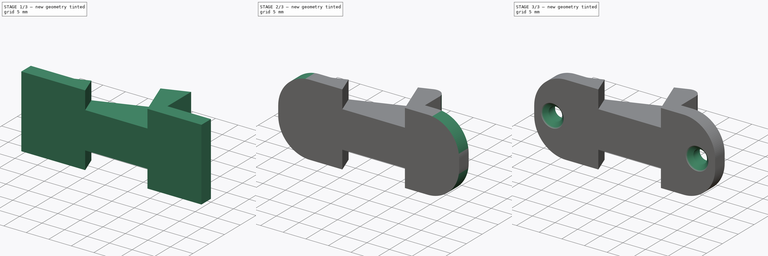
[diagram: build sequence overview — one tinted view per stage of 3, left to right]
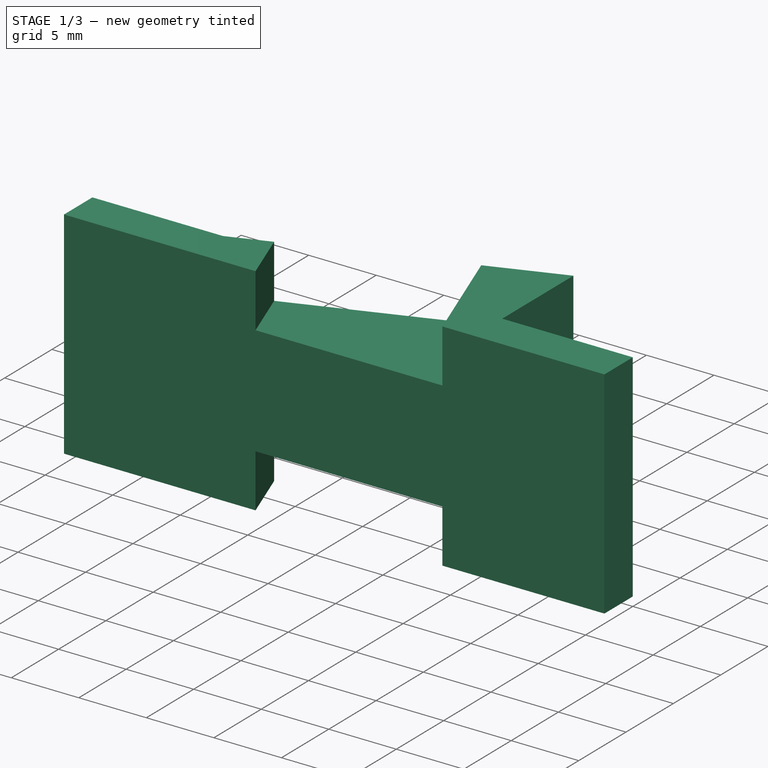
[diagram: stage 1 of 3 — iso view after this stage's code; geometry added in this stage tinted green]
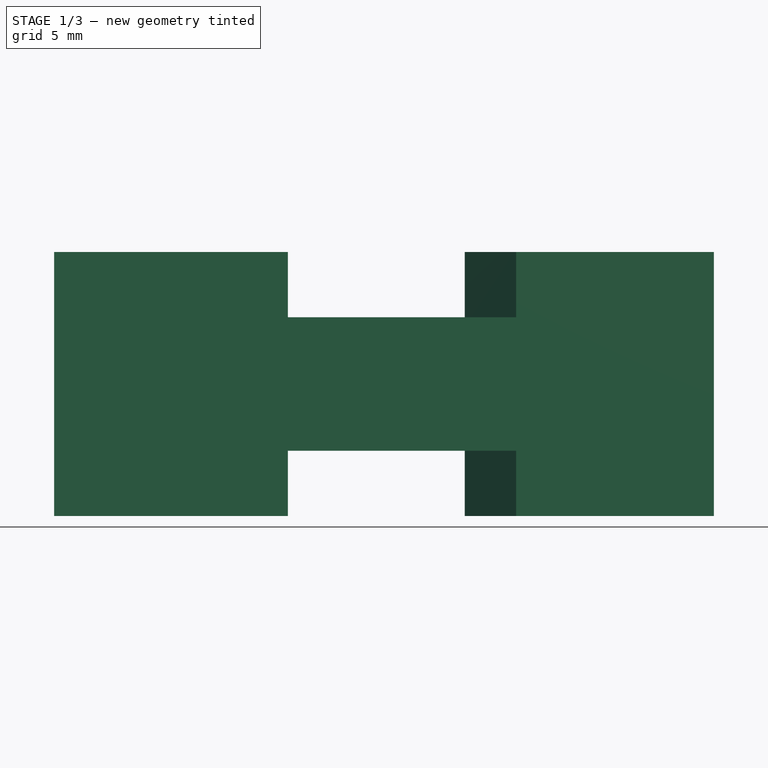
[diagram: stage 1 of 3 — front view after this stage's code; geometry added in this stage tinted green]
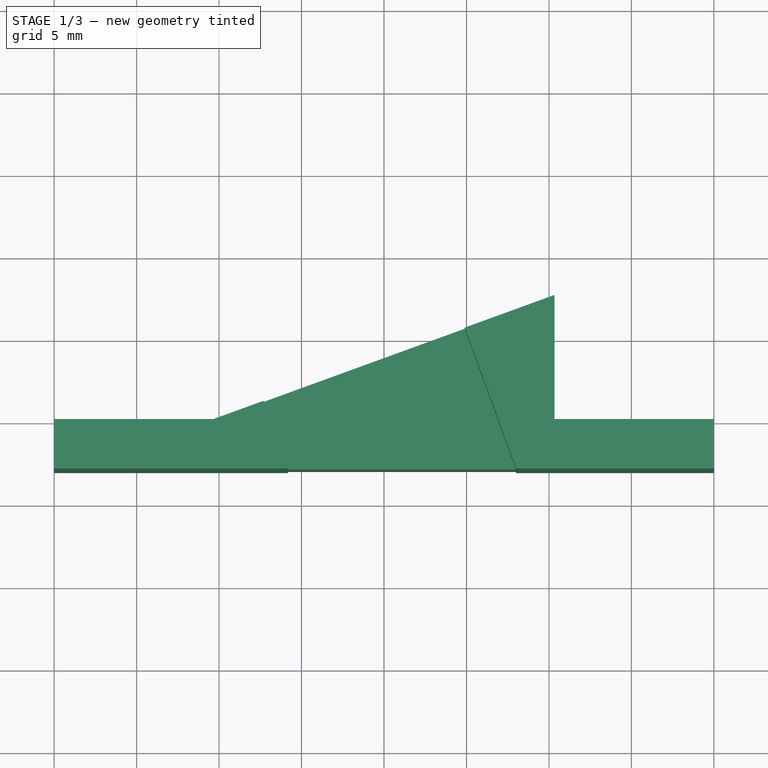
[diagram: stage 1 of 3 — top view after this stage's code; geometry added in this stage tinted green]
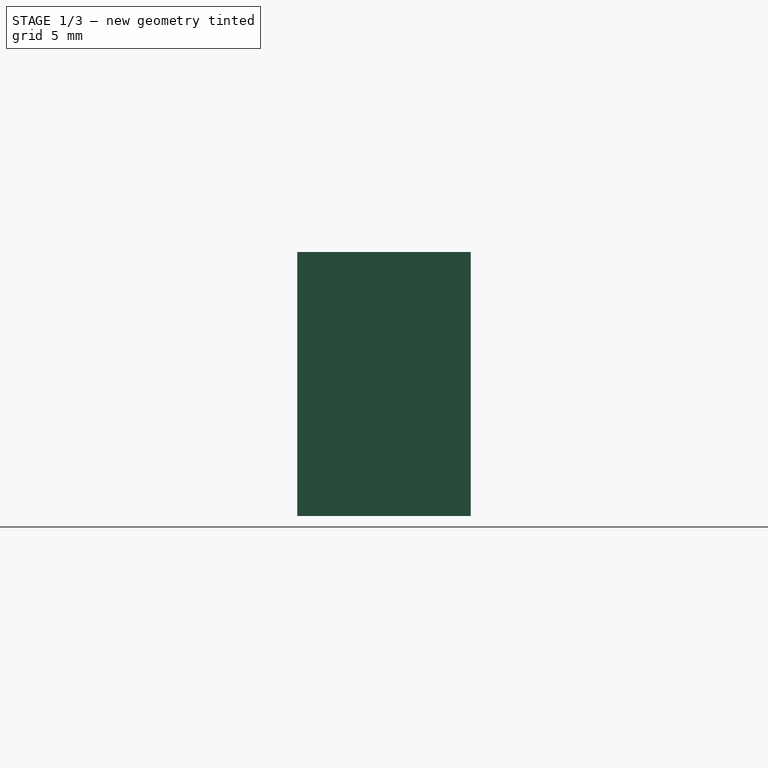
[diagram: stage 1 of 3 — right view after this stage's code; geometry added in this stage tinted green]
FCSTD DOCUMENT  (FreeCAD 1.0R38641 +468 (Git))
Label: ld2410_angledholder
License: All rights reserved
LicenseURL: https://en.wikipedia.org/wiki/All_rights_reserved
objects: Sketcher::SketchObject×4, PartDesign::Pocket×2, PartDesign::Fillet×2, PartDesign::Pad×1, PartDesign::Chamfer×1, PartDesign::Body×1
note: 27 computed .brp shape members not serialized (recipe doc carries the construction recipe); baked Part::Feature solids carry a one-line shape summary decoded from their .brp

FEATURE [Sketcher::SketchObject] Sketch006
  ArcFitTolerance = 1e-06
  AttachmentSupport = -> [XY_Plane003]
  FullyConstrained = true
  MakeInternals = false
  MapMode = 5
  sketch-geometry (7):
    g0: LineSegment StartX=-20 StartY=0 StartZ=0 EndX=-20 EndY=-3 EndZ=0
    g1: LineSegment StartX=-20 StartY=-3 StartZ=0 EndX=20 EndY=-3 EndZ=0
    g2: LineSegment StartX=20 StartY=-3 StartZ=0 EndX=20 EndY=0 EndZ=0
    g3: LineSegment StartX=10.3366 StartY=0 StartZ=0 EndX=10.3366 EndY=7.52444 EndZ=0
    g4: LineSegment StartX=10.3366 StartY=7.52444 StartZ=0 EndX=-10.3366 EndY=0 EndZ=0
    g5: LineSegment StartX=-20 StartY=0 StartZ=0 EndX=-10.3366 EndY=0 EndZ=0
    g6: LineSegment StartX=10.3366 StartY=0 StartZ=0 EndX=20 EndY=0 EndZ=0
  constraints (19):
    c: PointOnObject(g0,g-1)
    c: Vertical(g0)
    c: Coincident(g0,g1)
    c: Horizontal(g1)
    c: Coincident(g1,g2)
    c: Vertical(g2)
    c: Vertical(g3)
    c: Coincident(g3,g4)
    c: Coincident(g0,g5)
    c: Coincident(g5,g4)
    c: Horizontal(g5)
    c: Coincident(g3,g6)
    c: Coincident(g6,g2)
    c: Symmetric(g4,g3,g-1)
    c: Symmetric(g0,g2,g-1)
    c: DistanceX(g1,g1) = 40
    c: Distance(g4,g4) = 22
    c: Angle(g-1,g4) = 0.349066
    c: DistanceY(g2,g2) = 3
FEATURE [PartDesign::Pad] Pad005
  Direction = (0,0,1)
  Length = 16
  Length2 = 10
  Midplane = true
  Profile = -> Sketch006
  ReferenceAxis = -> Sketch006 [N_Axis]
  Refine = true
  Suppressed = false
  Type = 0
FEATURE [Sketcher::SketchObject] Sketch007
  ArcFitTolerance = 1e-06
  AttachmentSupport = -> [Pad005]
  ExternalGeometry = -> [Pad005]
  FullyConstrained = false
  MakeInternals = false
  MapMode = 5
  Placement = pos=(-1.20915,3.32213,0) rot=(-0.123724,0.701674,0.701674;3.38779rad)
  sketch-geometry (9):
    g0: LineSegment StartX=-6.5 StartY=-4.04995 StartZ=0 EndX=6.5 EndY=-4.04995 EndZ=0
    g1: LineSegment StartX=-6.5 StartY=-7.99995 StartZ=0 EndX=-6.5 EndY=-4.04995 EndZ=0
    g2: LineSegment StartX=6.5 StartY=-4.04995 StartZ=0 EndX=6.5 EndY=-7.99995 EndZ=0
    g3: LineSegment StartX=-6.5 StartY=-7.99995 StartZ=0 EndX=6.5 EndY=-7.99995 EndZ=0
    g4: LineSegment StartX=-6.5 StartY=4.05 StartZ=0 EndX=6.5 EndY=4.05 EndZ=0
    g5: LineSegment StartX=6.5 StartY=4.05 StartZ=0 EndX=6.5 EndY=8 EndZ=0
    g6: LineSegment StartX=6.5 StartY=8 StartZ=0 EndX=-6.5 EndY=8 EndZ=0
    g7: LineSegment StartX=-6.5 StartY=8 StartZ=0 EndX=-6.5 EndY=4.05 EndZ=0
    g8: GeomPoint [constr] X=0 Y=6.025 Z=0
  constraints (23):
    c: DistanceX(g0,g0) = 13
    c: Symmetric(g0,g0,g-2)
    c: Coincident(g1,g0)
    c: Vertical(g1)
    c: Coincident(g0,g2)
    c: Vertical(g2)
    c: Horizontal(g1,g2)
    c: DistanceY(g2,g2) = 3.95
    c: Coincident(g1,g3)
    c: Coincident(g3,g2)
    c: Coincident(g4,g5)
    c: Coincident(g5,g6)
    c: Coincident(g6,g7)
    c: Coincident(g7,g4)
    c: Horizontal(g4)
    c: Horizontal(g6)
    c: Vertical(g5)
    c: Vertical(g7)
    c: Symmetric(g6,g4,g8)
    c: PointOnObject(g8,g-2)
    c: PointOnObject(g5,g-3)
    c: Equal(g0,g4)
    c: Equal(g5,g2)
FEATURE [PartDesign::Pocket] Pocket001
  BaseFeature = -> Pad005
  Direction = (0.34202,-0.939693,1e-16)
  Length = 27
  Length2 = 5
  Profile = -> Sketch007
  ReferenceAxis = -> Sketch007 [N_Axis]
  Refine = true
  Suppressed = false
  Type = 1
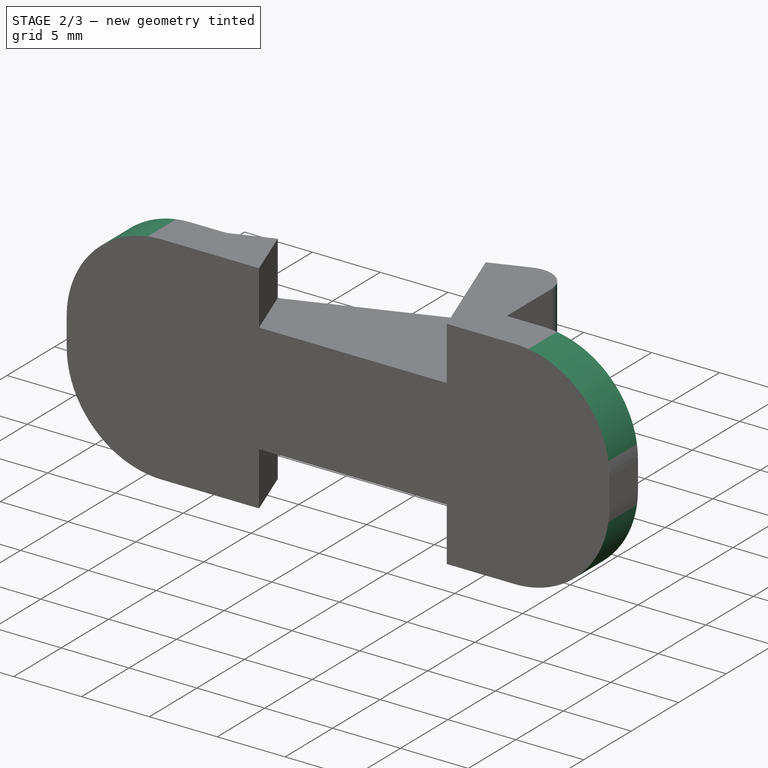
[diagram: stage 2 of 3 — iso view after this stage's code; geometry added in this stage tinted green]
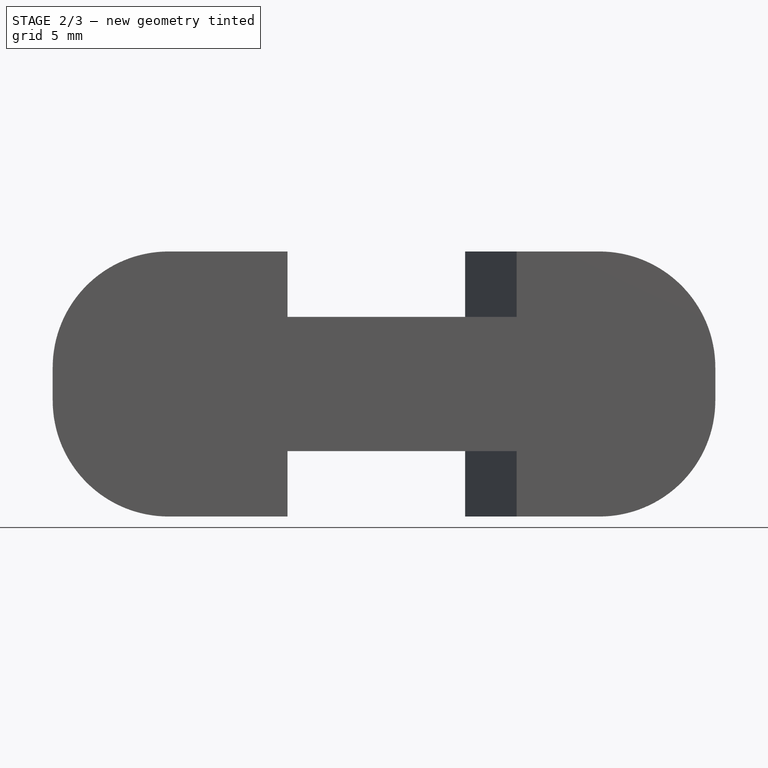
[diagram: stage 2 of 3 — front view after this stage's code; geometry added in this stage tinted green]
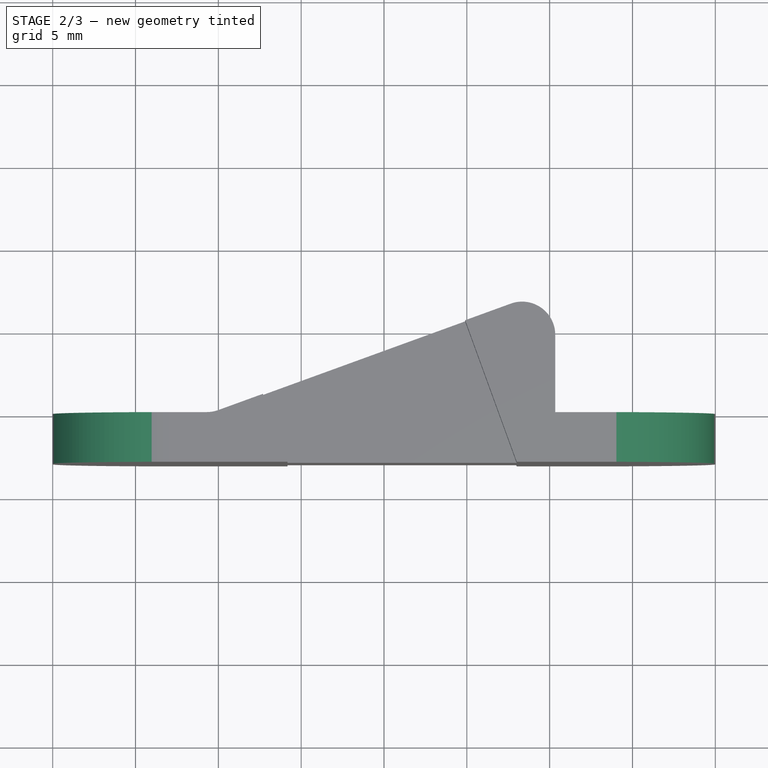
[diagram: stage 2 of 3 — top view after this stage's code; geometry added in this stage tinted green]
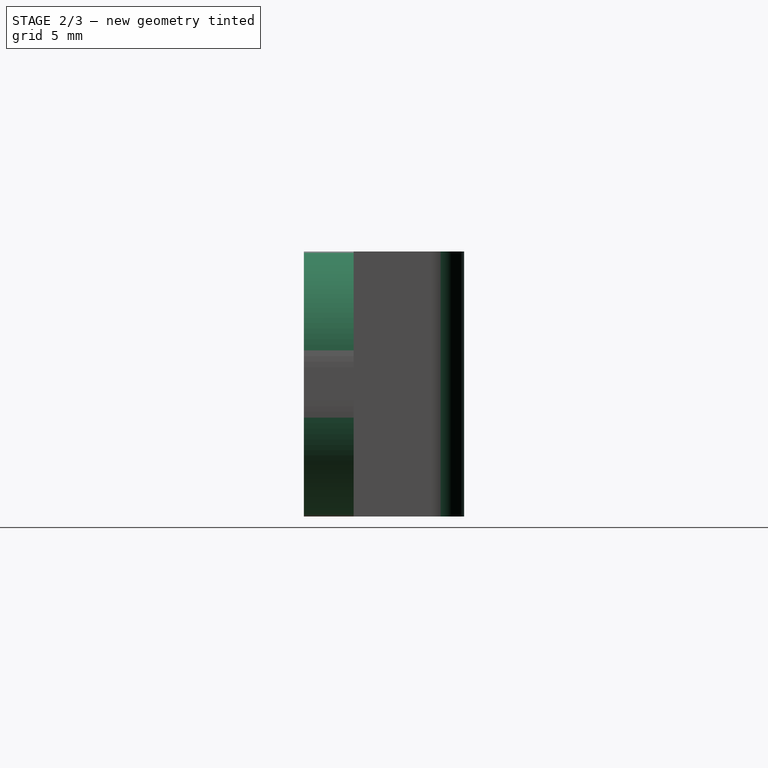
[diagram: stage 2 of 3 — right view after this stage's code; geometry added in this stage tinted green]
FEATURE [PartDesign::Fillet] Fillet001
  Base = -> Pocket001 [Edge2,Edge13]
  BaseFeature = -> Pocket001
  Radius = 2
  Refine = true
  SupportTransform = false
  Suppressed = false
  UseAllEdges = false
FEATURE [PartDesign::Fillet] Fillet002
  Base = -> Fillet001 [Edge50,Edge18,Edge10,Edge45]
  BaseFeature = -> Fillet001
  Radius = 7
  Refine = true
  SupportTransform = false
  Suppressed = false
  UseAllEdges = false
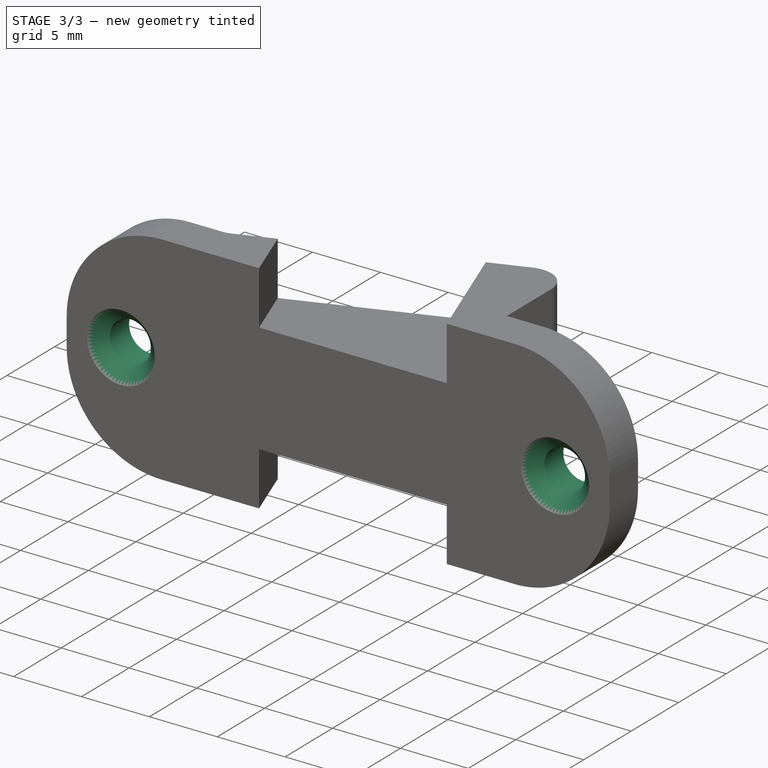
[diagram: stage 3 of 3 — iso view after this stage's code; geometry added in this stage tinted green]
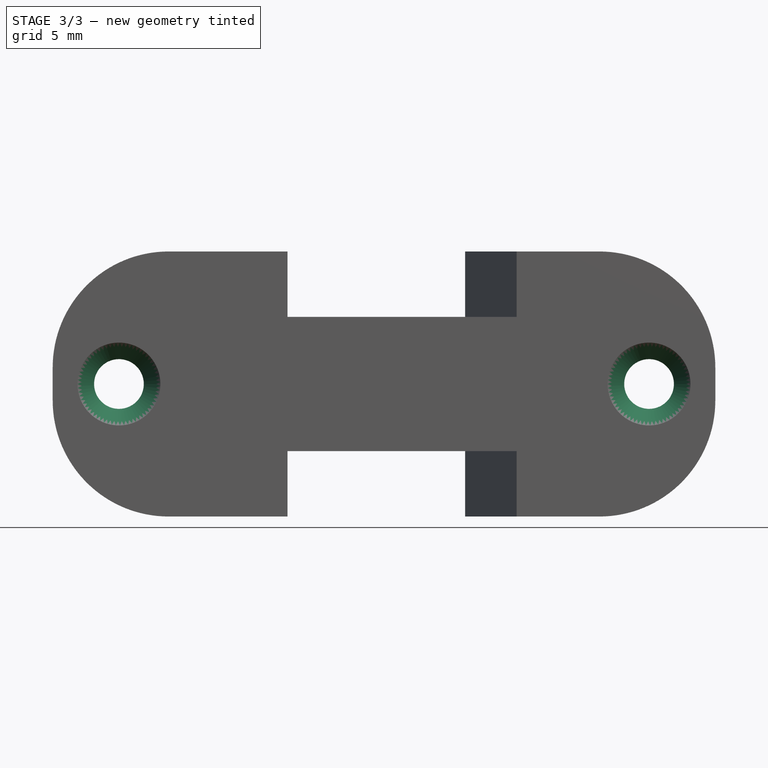
[diagram: stage 3 of 3 — front view after this stage's code; geometry added in this stage tinted green]
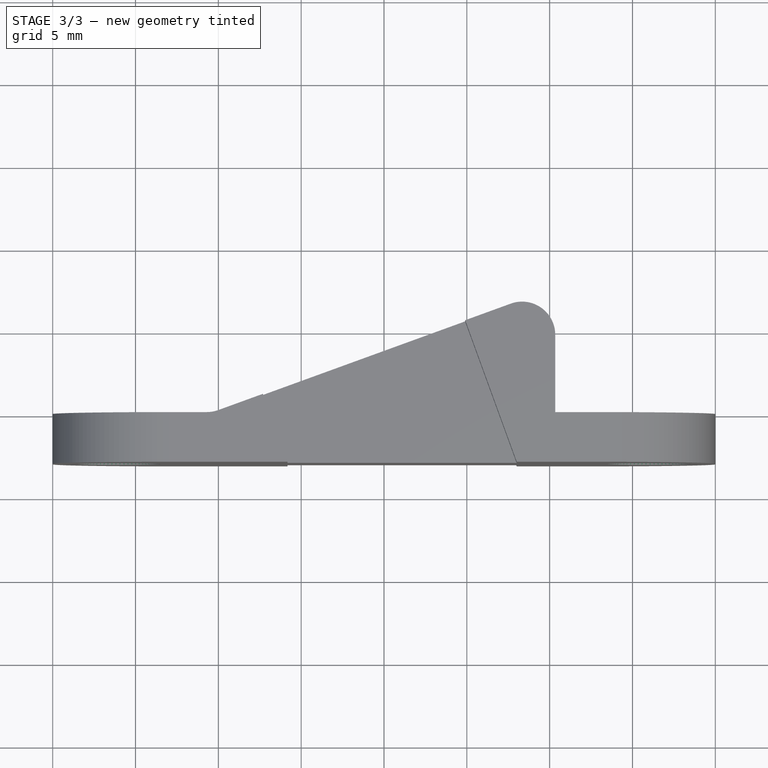
[diagram: stage 3 of 3 — top view after this stage's code; geometry added in this stage tinted green]
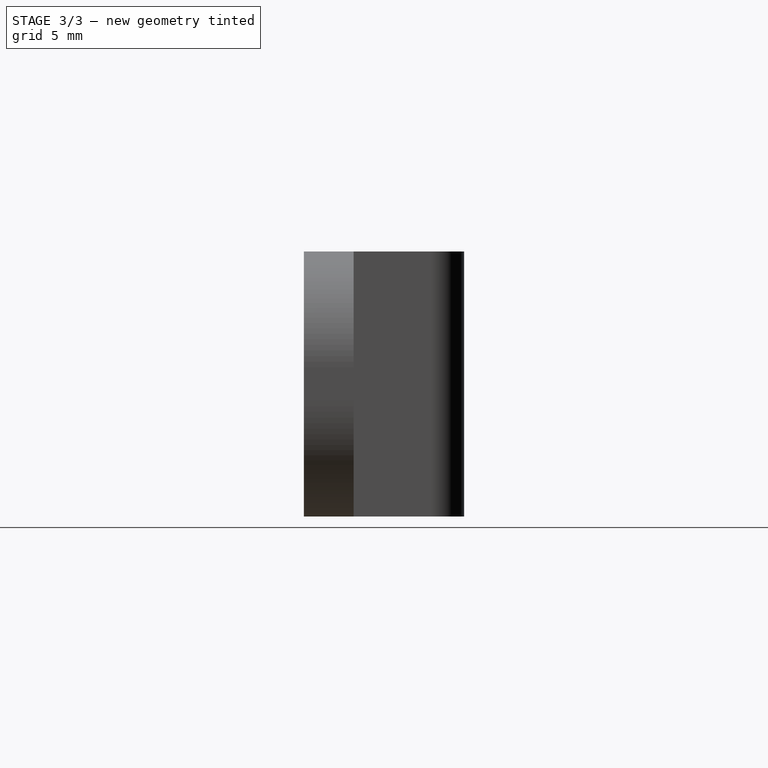
[diagram: stage 3 of 3 — right view after this stage's code; geometry added in this stage tinted green]
FEATURE [Sketcher::SketchObject] Sketch008
  ArcFitTolerance = 1e-06
  AttachmentSupport = -> [XZ_Plane003]
  ExternalGeometry = -> [Fillet002]
  FullyConstrained = true
  MakeInternals = false
  MapMode = 5
  Placement = pos=(0,0,0) rot=(1,0,0;1.5708rad)
  sketch-geometry (2):
    g0: Circle CenterX=-16 CenterY=0 CenterZ=0 NormalX=0 NormalY=0 NormalZ=1 AngleXU=0 Radius=1.5
    g1: Circle CenterX=16 CenterY=0 CenterZ=0 NormalX=0 NormalY=0 NormalZ=1 AngleXU=0 Radius=1.5
  constraints (5):
    c: PointOnObject(g1,g-1)
    c: Symmetric(g0,g1,g-1)
    c: Equal(g0,g1)
    c: Diameter(g1) = 3
    c: DistanceX(g1,g-3) = 4
FEATURE [PartDesign::Pocket] Pocket002
  BaseFeature = -> Fillet002
  Direction = (0,1,-2e-16)
  Length = 5
  Length2 = 5
  Midplane = true
  Profile = -> Sketch008
  ReferenceAxis = -> Sketch008 [N_Axis]
  Refine = true
  Suppressed = false
  Type = 1
FEATURE [PartDesign::Chamfer] Chamfer
  Angle = 45
  Base = -> Pocket002 [Edge23,Edge24]
  BaseFeature = -> Pocket002
  ChamferType = 0
  FlipDirection = false
  Refine = true
  Size = 1
  Size2 = 1
  SupportTransform = false
  Suppressed = false
  UseAllEdges = false
FEATURE [Sketcher::SketchObject] Sketch
  ArcFitTolerance = 1e-06
  AttachmentSupport = -> [XZ_Plane003]
  ExternalGeometry = -> [Chamfer]
  FullyConstrained = true
  MakeInternals = false
  MapMode = 5
  Placement = pos=(0,0,0) rot=(1,0,0;1.5708rad)
  constraints (1):
    c: DistanceX(g-3,g-4) = 32
FEATURE [PartDesign::Body] Body003
  AllowCompound = false
  Group = -> [Sketch006,Pad005,Sketch007,Pocket001,Fillet001,Fillet002,Sketch008,Pocket002,Chamfer,Sketch]
  Origin = -> Origin003
  Tip = -> Chamfer
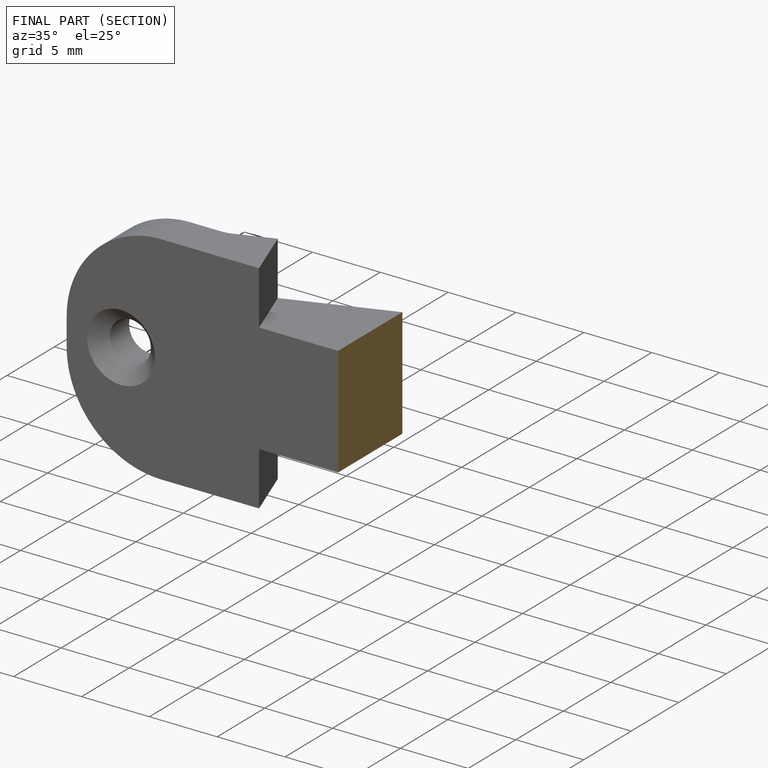
[diagram: finished part — half-section view (interior)]
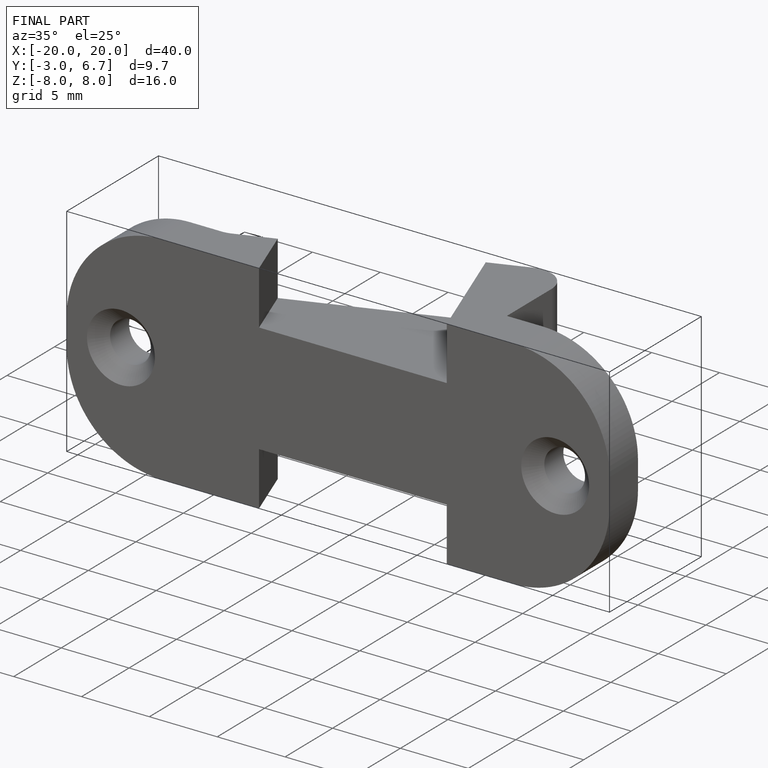
[diagram: finished part — iso view with bounding-box wireframe]
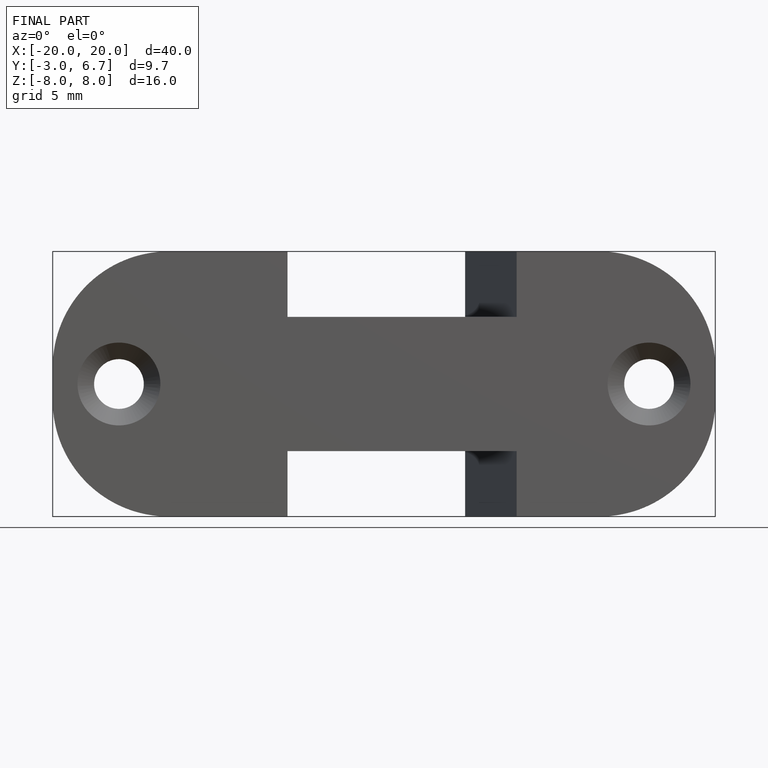
[diagram: finished part — front view with bounding-box wireframe]
